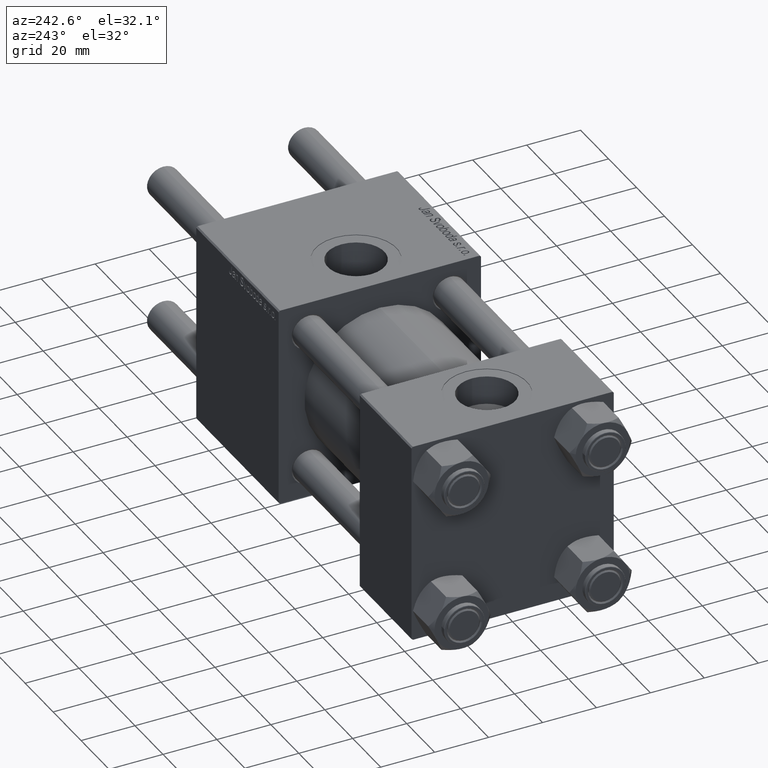
[diagram: clean part render]
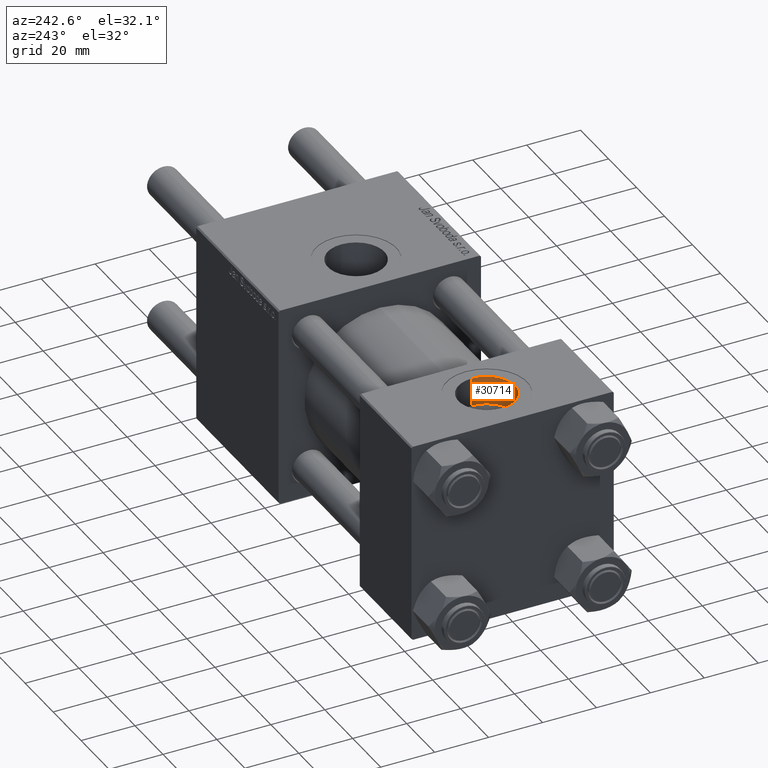
[diagram: same view with one face highlighted and labeled with its STEP entity id]
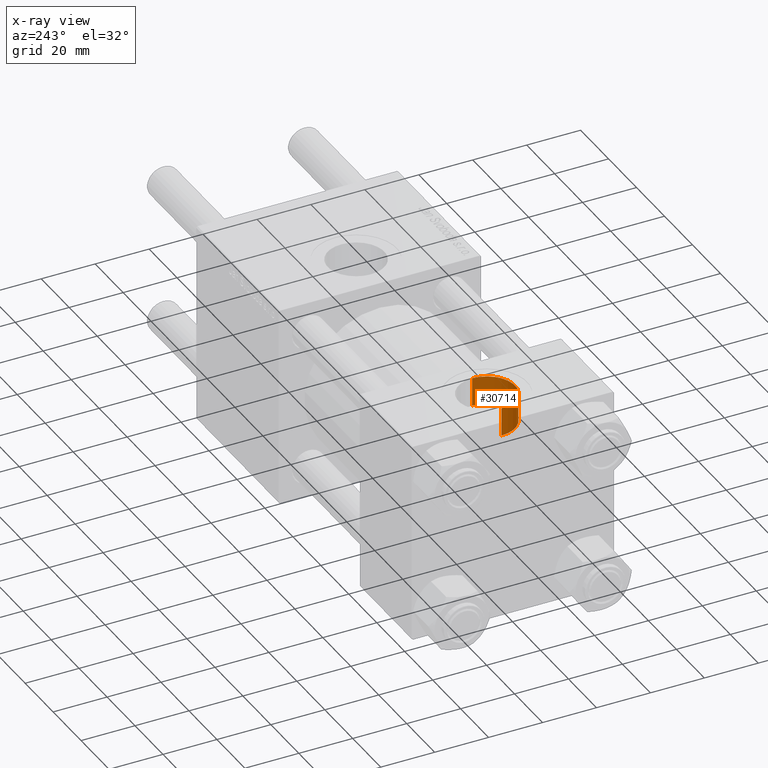
[diagram: x-ray of the same camera — body ghosted, the highlighted face saturated]
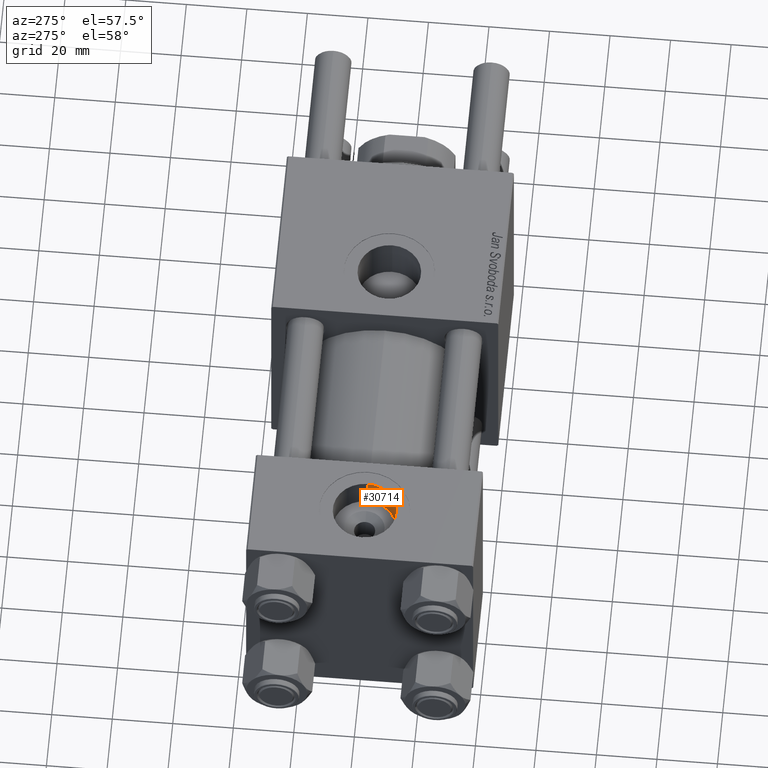
[diagram: same view with one face highlighted and labeled with its STEP entity id]
A machine part, auxiliary view. The second image highlights one B-rep face of the part: STEP entity #30714.
The next image is the same camera in x-ray: the body ghosted, the highlighted face saturated — about 0% of this face is hidden behind the body in this view.
A second angle (auxiliary view) of the same face is appended — the face is thin or edge-on in the first view.
In plain terms, the highlighted cylindrical surface (edge-blend (fillet) strip) has radius 10.48 mm, axis along (0, 0, 1).
Its self-contained STEP definition (entity closure, byte-faithful):
#2005 = DIRECTION ( 'NONE',  ( 1.000000000000000000, 0.000000000000000000, 0.000000000000000000 ) ) ;
#4018 = VERTEX_POINT ( 'NONE', #12788 ) ;
#7832 = CARTESIAN_POINT ( 'NONE',  ( 18.50000000000000000, -5.204170427930421283E-15, 37.29999999999999716 ) ) ;
#8001 = CARTESIAN_POINT ( 'NONE',  ( 28.98000000000000043, -5.204170427930421283E-15, 26.69999999999999929 ) ) ;
#8692 = EDGE_CURVE ( 'NONE', #55870, #19072, #20250, .T. ) ;
#10618 = FACE_OUTER_BOUND ( 'NONE', #51351, .T. ) ;
#10782 = DIRECTION ( 'NONE',  ( -0.000000000000000000, -0.000000000000000000, 1.000000000000000000 ) ) ;
#11072 = DIRECTION ( 'NONE',  ( 0.000000000000000000, 0.000000000000000000, 1.000000000000000000 ) ) ;
#12788 = CARTESIAN_POINT ( 'NONE',  ( 8.019999999999999574, -3.920740582423995006E-15, 26.69999999999999929 ) ) ;
#14394 = CARTESIAN_POINT ( 'NONE',  ( 28.98000000000000043, -5.204170427930421283E-15, 26.69999999999999929 ) ) ;
#16050 = CARTESIAN_POINT ( 'NONE',  ( 28.98000000000000043, -5.204170427930421283E-15, 37.29999999999999716 ) ) ;
#16881 = VECTOR ( 'NONE', #39228, 1000.000000000000000 ) ;
#17841 = DIRECTION ( 'NONE',  ( 0.000000000000000000, 0.000000000000000000, 1.000000000000000000 ) ) ;
#19072 = VERTEX_POINT ( 'NONE', #16050 ) ;
#20250 = CIRCLE ( 'NONE', #23875, 10.48000000000000043 ) ;
#22922 = VERTEX_POINT ( 'NONE', #14394 ) ;
#23690 = CARTESIAN_POINT ( 'NONE',  ( 8.019999999999999574, -3.920740582423995006E-15, 26.69999999999999929 ) ) ;
#23875 = AXIS2_PLACEMENT_3D ( 'NONE', #7832, #17841, #30751 ) ;
#28114 = CYLINDRICAL_SURFACE ( 'NONE', #50946, 10.48000000000000043 ) ;
#29762 = ORIENTED_EDGE ( 'NONE', *, *, #36824, .F. ) ;
#30714 = ADVANCED_FACE ( 'NONE', ( #10618 ), #28114, .F. ) ;
#30751 = DIRECTION ( 'NONE',  ( 1.000000000000000000, 0.000000000000000000, 0.000000000000000000 ) ) ;
#32114 = CARTESIAN_POINT ( 'NONE',  ( 8.019999999999999574, -3.920740582423995006E-15, 37.29999999999999716 ) ) ;
#32575 = ORIENTED_EDGE ( 'NONE', *, *, #8692, .T. ) ;
#36070 = EDGE_CURVE ( 'NONE', #4018, #55870, #49514, .T. ) ;
#36629 = AXIS2_PLACEMENT_3D ( 'NONE', #49521, #11072, #40635 ) ;
#36824 = EDGE_CURVE ( 'NONE', #4018, #22922, #45779, .T. ) ;
#39228 = DIRECTION ( 'NONE',  ( -0.000000000000000000, -0.000000000000000000, 1.000000000000000000 ) ) ;
#40635 = DIRECTION ( 'NONE',  ( 1.000000000000000000, 0.000000000000000000, 0.000000000000000000 ) ) ;
#45612 = CARTESIAN_POINT ( 'NONE',  ( 18.50000000000000000, -5.204170427930421283E-15, 26.69999999999999929 ) ) ;
#45779 = CIRCLE ( 'NONE', #36629, 10.48000000000000043 ) ;
#45900 = DIRECTION ( 'NONE',  ( -0.000000000000000000, -0.000000000000000000, 1.000000000000000000 ) ) ;
#48772 = ORIENTED_EDGE ( 'NONE', *, *, #36070, .T. ) ;
#49514 = LINE ( 'NONE', #23690, #55850 ) ;
#49521 = CARTESIAN_POINT ( 'NONE',  ( 18.50000000000000000, -5.204170427930421283E-15, 26.69999999999999929 ) ) ;
#49543 = EDGE_CURVE ( 'NONE', #22922, #19072, #51581, .T. ) ;
#50946 = AXIS2_PLACEMENT_3D ( 'NONE', #45612, #45900, #2005 ) ;
#51351 = EDGE_LOOP ( 'NONE', ( #29762, #48772, #32575, #51484 ) ) ;
#51484 = ORIENTED_EDGE ( 'NONE', *, *, #49543, .F. ) ;
#51581 = LINE ( 'NONE', #8001, #16881 ) ;
#55850 = VECTOR ( 'NONE', #10782, 1000.000000000000000 ) ;
#55870 = VERTEX_POINT ( 'NONE', #32114 ) ;